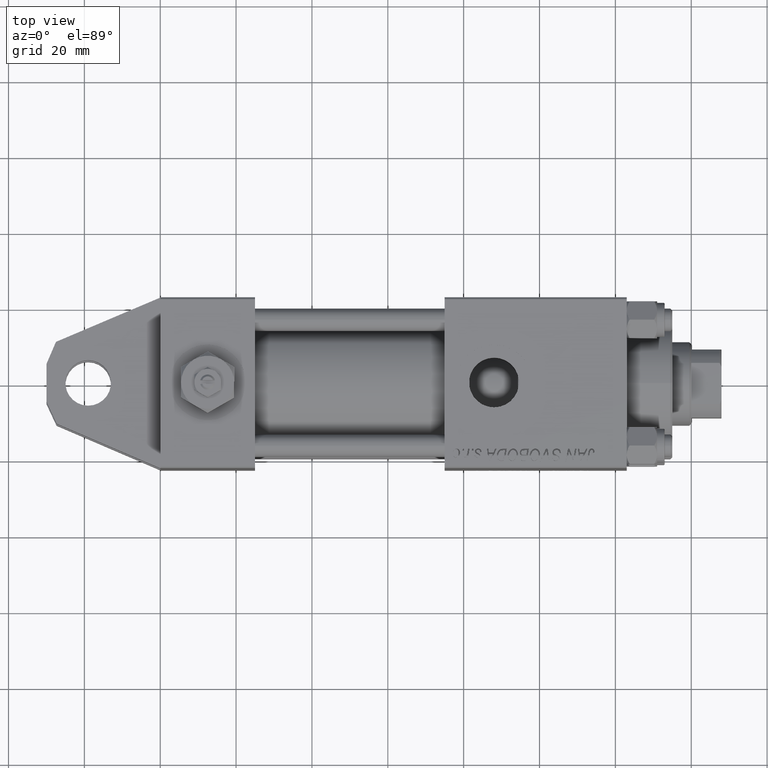
[diagram: clean part render]
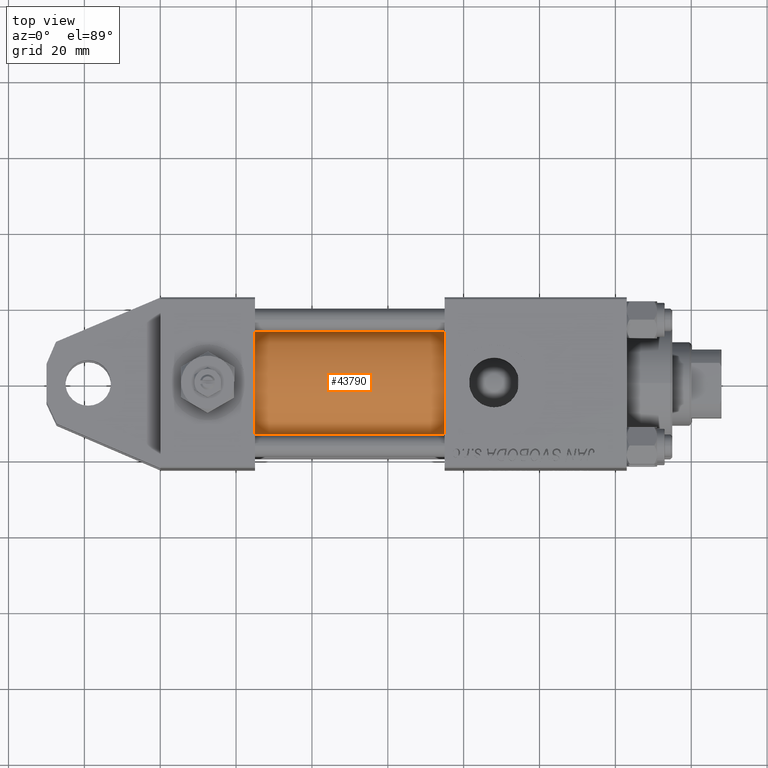
[diagram: same view with one face highlighted and labeled with its STEP entity id]
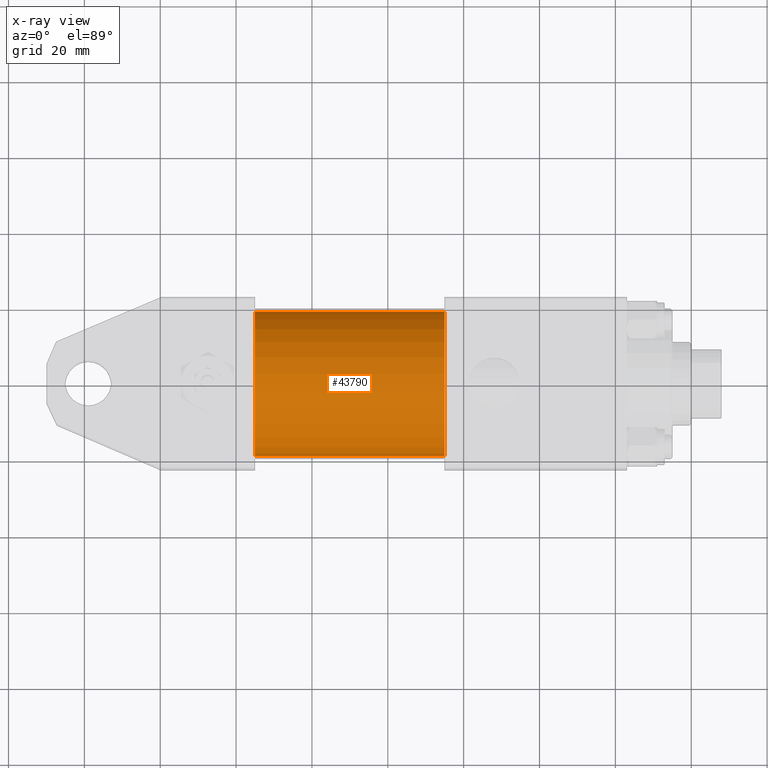
[diagram: x-ray of the same camera — body ghosted, the highlighted face saturated]
A machine part, top view. The second image highlights one B-rep face of the part: STEP entity #43790.
The next image is the same camera in x-ray: the body ghosted, the highlighted face saturated — about 0% of this face is hidden behind the body in this view.
In plain terms, the highlighted cylindrical surface (partial cylindrical patch) has radius 19 mm, axis along (-1, -0, 0).
Its self-contained STEP definition (entity closure, byte-faithful):
#1776 = AXIS2_PLACEMENT_3D ( 'NONE', #49094, #49355, #2058 ) ;
#2058 = DIRECTION ( 'NONE',  ( 0.000000000000000000, 0.000000000000000000, -1.000000000000000000 ) ) ;
#3582 = CIRCLE ( 'NONE', #32795, 19.00000000000000000 ) ;
#4838 = EDGE_CURVE ( 'NONE', #49464, #26369, #14006, .T. ) ;
#9042 = VECTOR ( 'NONE', #33861, 1000.000000000000000 ) ;
#10864 = DIRECTION ( 'NONE',  ( 0.000000000000000000, 0.000000000000000000, 1.000000000000000000 ) ) ;
#11450 = CARTESIAN_POINT ( 'NONE',  ( 25.00000000000000000, -1.142618033573643218E-15, -19.00000000000000000 ) ) ;
#13207 = CARTESIAN_POINT ( 'NONE',  ( 75.00000000000001421, -3.469446951953614189E-15, 19.00000000000000000 ) ) ;
#13737 = ORIENTED_EDGE ( 'NONE', *, *, #4838, .T. ) ;
#14006 = LINE ( 'NONE', #48752, #9042 ) ;
#15303 = DIRECTION ( 'NONE',  ( 1.000000000000000000, -0.000000000000000000, 0.000000000000000000 ) ) ;
#16131 = VERTEX_POINT ( 'NONE', #25070 ) ;
#16216 = FACE_OUTER_BOUND ( 'NONE', #44149, .T. ) ;
#16475 = VERTEX_POINT ( 'NONE', #11450 ) ;
#16626 = EDGE_CURVE ( 'NONE', #16131, #16475, #30926, .T. ) ;
#17680 = CARTESIAN_POINT ( 'NONE',  ( 25.00000000000000000, -3.469446951953614189E-15, 19.00000000000000000 ) ) ;
#24196 = ORIENTED_EDGE ( 'NONE', *, *, #16626, .F. ) ;
#25070 = CARTESIAN_POINT ( 'NONE',  ( 75.00000000000001421, -1.142618033573643218E-15, -19.00000000000000000 ) ) ;
#26369 = VERTEX_POINT ( 'NONE', #17680 ) ;
#27265 = CARTESIAN_POINT ( 'NONE',  ( 75.00000000000001421, -1.142618033573643218E-15, -19.00000000000000000 ) ) ;
#28037 = AXIS2_PLACEMENT_3D ( 'NONE', #39728, #39223, #47060 ) ;
#28814 = EDGE_CURVE ( 'NONE', #49464, #16131, #42678, .T. ) ;
#30926 = LINE ( 'NONE', #27265, #46908 ) ;
#32795 = AXIS2_PLACEMENT_3D ( 'NONE', #50832, #15303, #10864 ) ;
#33861 = DIRECTION ( 'NONE',  ( -1.000000000000000000, -0.000000000000000000, -0.000000000000000000 ) ) ;
#35436 = EDGE_CURVE ( 'NONE', #26369, #16475, #3582, .T. ) ;
#35814 = CYLINDRICAL_SURFACE ( 'NONE', #28037, 19.00000000000000000 ) ;
#39223 = DIRECTION ( 'NONE',  ( -1.000000000000000000, -0.000000000000000000, -0.000000000000000000 ) ) ;
#39276 = DIRECTION ( 'NONE',  ( -1.000000000000000000, -0.000000000000000000, -0.000000000000000000 ) ) ;
#39728 = CARTESIAN_POINT ( 'NONE',  ( 75.00000000000001421, -3.469446951953614189E-15, 0.000000000000000000 ) ) ;
#42678 = CIRCLE ( 'NONE', #1776, 19.00000000000000000 ) ;
#43790 = ADVANCED_FACE ( 'NONE', ( #16216 ), #35814, .T. ) ;
#44149 = EDGE_LOOP ( 'NONE', ( #24196, #50377, #13737, #46776 ) ) ;
#46776 = ORIENTED_EDGE ( 'NONE', *, *, #35436, .T. ) ;
#46908 = VECTOR ( 'NONE', #39276, 1000.000000000000000 ) ;
#47060 = DIRECTION ( 'NONE',  ( 0.000000000000000000, 0.000000000000000000, 1.000000000000000000 ) ) ;
#48752 = CARTESIAN_POINT ( 'NONE',  ( 75.00000000000001421, -3.469446951953614189E-15, 19.00000000000000000 ) ) ;
#49094 = CARTESIAN_POINT ( 'NONE',  ( 75.00000000000001421, -3.469446951953614189E-15, 0.000000000000000000 ) ) ;
#49355 = DIRECTION ( 'NONE',  ( 1.000000000000000000, 0.000000000000000000, 0.000000000000000000 ) ) ;
#49464 = VERTEX_POINT ( 'NONE', #13207 ) ;
#50377 = ORIENTED_EDGE ( 'NONE', *, *, #28814, .F. ) ;
#50832 = CARTESIAN_POINT ( 'NONE',  ( 25.00000000000000000, -3.469446951953614189E-15, 0.000000000000000000 ) ) ;